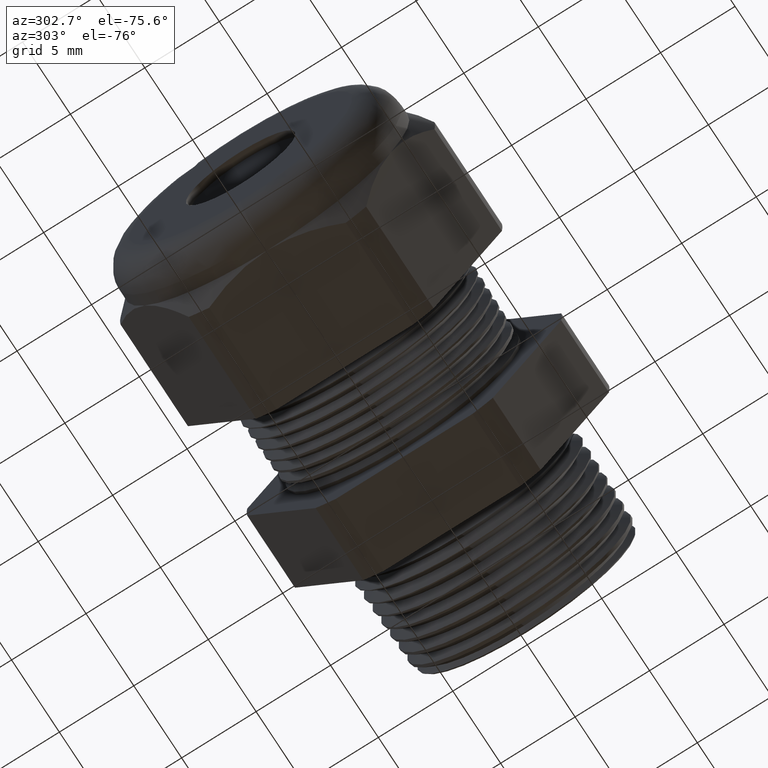
[diagram: clean part render]
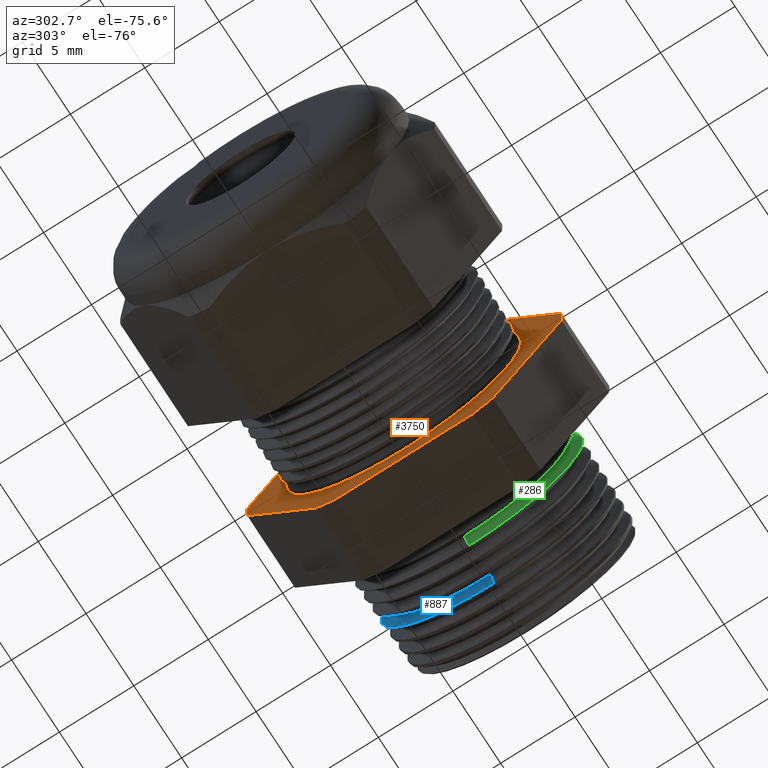
[diagram: same view with three faces highlighted in distinct colors, each labeled with its STEP entity id]
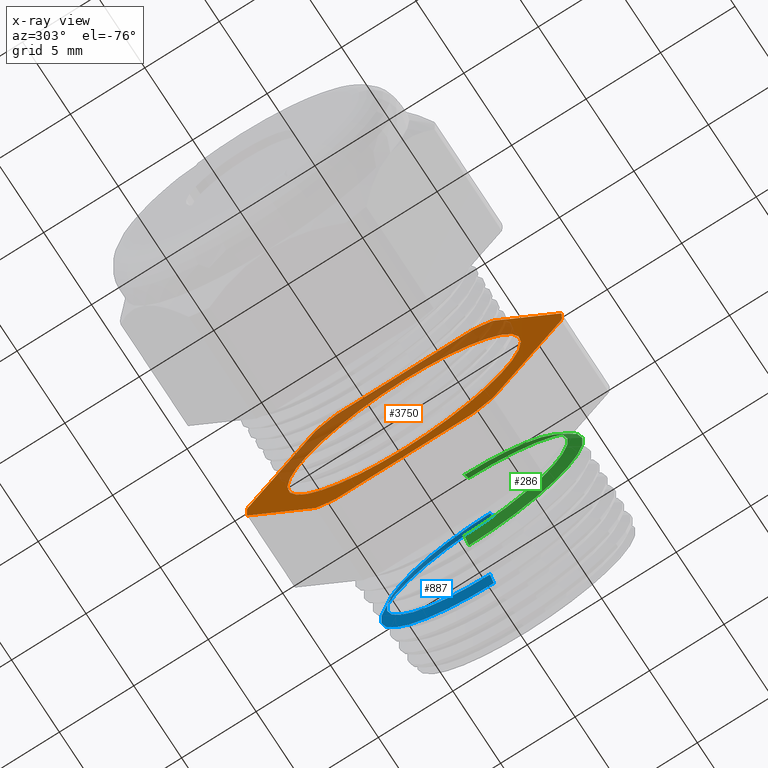
[diagram: x-ray of the same camera — body ghosted, the three highlighted faces saturated]
A machine part, auxiliary view with three faces highlighted in distinct colors.
The next image is the same camera in x-ray (body ghosted, the three faces saturated) — at least one of them is partly hidden behind the body in this view.
Their STEP definitions:

[orange] entity #3750 — the highlighted planar face has unit normal (-1, 0, 0).
#32 = EDGE_CURVE ( 'NONE', #3816, #35, #1133, .T. ) ;
#35 = VERTEX_POINT ( 'NONE', #1125 ) ;
#1052 = EDGE_CURVE ( 'NONE', #1061, #1053, #2877, .T. ) ;
#1053 = VERTEX_POINT ( 'NONE', #2934 ) ;
#1061 = VERTEX_POINT ( 'NONE', #2915 ) ;
#1125 = CARTESIAN_POINT ( 'NONE',  ( -0.5068503937007874400, 0.2344281053908202900, -0.3439586107409878800 ) ) ;
#1130 = DIRECTION ( 'NONE',  ( 0.0000000000000000000, -0.5000000000000001100, -0.8660254037844386000 ) ) ;
#1131 = VECTOR ( 'NONE', #1130, 39.37007874015748900 ) ;
#1132 = CARTESIAN_POINT ( 'NONE',  ( -0.5068503937007874400, 0.5122595264191646100, 0.1372595264191645000 ) ) ;
#1133 = LINE ( 'NONE', #1132, #1131 ) ;
#2877 = CIRCLE ( 'NONE', #2938, 0.3086102227604024500 ) ;
#2915 = CARTESIAN_POINT ( 'NONE',  ( -0.5068503937007873300, 3.780744073576440700E-017, -0.3086102227604024500 ) ) ;
#2934 = CARTESIAN_POINT ( 'NONE',  ( -0.5068503937007873300, 0.0000000000000000000, 0.3086102227604024500 ) ) ;
#2935 = DIRECTION ( 'NONE',  ( 0.0000000000000000000, 0.0000000000000000000, -1.000000000000000000 ) ) ;
#2936 = DIRECTION ( 'NONE',  ( 1.000000000000000000, 0.0000000000000000000, 0.0000000000000000000 ) ) ;
#2937 = CARTESIAN_POINT ( 'NONE',  ( -0.5068503937007873300, 0.0000000000000000000, 0.0000000000000000000 ) ) ;
#2938 = AXIS2_PLACEMENT_3D ( 'NONE', #2937, #2936, #2935 ) ;
#2948 = CARTESIAN_POINT ( 'NONE',  ( -0.5068503937007874400, 0.4150909474475088000, 0.03104138925901233200 ) ) ;
#2949 = DIRECTION ( 'NONE',  ( 0.0000000000000000000, 0.4999999999999998300, -0.8660254037844386000 ) ) ;
#2950 = VECTOR ( 'NONE', #2949, 39.37007874015748900 ) ;
#2951 = CARTESIAN_POINT ( 'NONE',  ( -0.5068503937007874400, 0.5122595264191646100, -0.1372595264191644500 ) ) ;
#2952 = LINE ( 'NONE', #2951, #2950 ) ;
#2972 = CARTESIAN_POINT ( 'NONE',  ( -0.5068503937007873300, 0.0000000000000000000, 0.0000000000000000000 ) ) ;
#2973 = CIRCLE ( 'NONE', #3035, 0.3086102227604024500 ) ;
#2974 = DIRECTION ( 'NONE',  ( 0.0000000000000000000, 0.0000000000000000000, 1.000000000000000000 ) ) ;
#2975 = DIRECTION ( 'NONE',  ( -1.000000000000000000, 0.0000000000000000000, 0.0000000000000000000 ) ) ;
#2976 = CARTESIAN_POINT ( 'NONE',  ( -0.5068503937007874400, 0.7500000000000001100, 0.0000000000000000000 ) ) ;
#2977 = AXIS2_PLACEMENT_3D ( 'NONE', #2976, #2975, #2974 ) ;
#2978 = FACE_OUTER_BOUND ( 'NONE', #3748, .T. ) ;
#2979 = FACE_BOUND ( 'NONE', #3749, .T. ) ;
#2984 = PLANE ( 'NONE',  #2977 ) ;
#2987 = DIRECTION ( 'NONE',  ( 0.0000000000000000000, 0.0000000000000000000, 1.000000000000000000 ) ) ;
#2988 = DIRECTION ( 'NONE',  ( -1.000000000000000000, 0.0000000000000000000, 0.0000000000000000000 ) ) ;
#2989 = CARTESIAN_POINT ( 'NONE',  ( -0.5068503937007874400, 0.0000000000000000000, 0.0000000000000000000 ) ) ;
#2990 = AXIS2_PLACEMENT_3D ( 'NONE', #2989, #2988, #2987 ) ;
#2991 = CIRCLE ( 'NONE', #2990, 0.4162500000000000100 ) ;
#3010 = CARTESIAN_POINT ( 'NONE',  ( -0.5068503937007874400, 0.2344281053908206000, 0.3439586107409877100 ) ) ;
#3011 = DIRECTION ( 'NONE',  ( 0.0000000000000000000, 0.0000000000000000000, 1.000000000000000000 ) ) ;
#3012 = DIRECTION ( 'NONE',  ( -1.000000000000000000, 0.0000000000000000000, 0.0000000000000000000 ) ) ;
#3013 = CARTESIAN_POINT ( 'NONE',  ( -0.5068503937007874400, 0.0000000000000000000, 0.0000000000000000000 ) ) ;
#3014 = AXIS2_PLACEMENT_3D ( 'NONE', #3013, #3012, #3011 ) ;
#3015 = CIRCLE ( 'NONE', #3014, 0.4162499999999999500 ) ;
#3033 = DIRECTION ( 'NONE',  ( 0.0000000000000000000, 0.0000000000000000000, -1.000000000000000000 ) ) ;
#3034 = DIRECTION ( 'NONE',  ( 1.000000000000000000, 0.0000000000000000000, 0.0000000000000000000 ) ) ;
#3035 = AXIS2_PLACEMENT_3D ( 'NONE', #2972, #3034, #3033 ) ;
#3054 = CARTESIAN_POINT ( 'NONE',  ( -0.5068503937007874400, 0.1806628420566887000, 0.3749999999999999400 ) ) ;
#3055 = DIRECTION ( 'NONE',  ( 0.0000000000000000000, 1.000000000000000000, 0.0000000000000000000 ) ) ;
#3056 = VECTOR ( 'NONE', #3055, 39.37007874015748100 ) ;
#3057 = CARTESIAN_POINT ( 'NONE',  ( -0.5068503937007874400, 0.7500000000000001100, 0.3749999999999999400 ) ) ;
#3062 = LINE ( 'NONE', #3057, #3056 ) ;
#3072 = DIRECTION ( 'NONE',  ( 0.0000000000000000000, 0.0000000000000000000, 1.000000000000000000 ) ) ;
#3073 = DIRECTION ( 'NONE',  ( -1.000000000000000000, 0.0000000000000000000, 0.0000000000000000000 ) ) ;
#3074 = CARTESIAN_POINT ( 'NONE',  ( -0.5068503937007874400, 0.0000000000000000000, 0.0000000000000000000 ) ) ;
#3075 = AXIS2_PLACEMENT_3D ( 'NONE', #3074, #3073, #3072 ) ;
#3076 = CIRCLE ( 'NONE', #3075, 0.4162500000000000100 ) ;
#3087 = CARTESIAN_POINT ( 'NONE',  ( -0.5068503937007874400, 0.4150909474475088000, -0.03104138925901223100 ) ) ;
#3088 = CARTESIAN_POINT ( 'NONE',  ( -0.5068503937007874400, -0.2344281053908202100, -0.3439586107409880500 ) ) ;
#3089 = DIRECTION ( 'NONE',  ( 0.0000000000000000000, 0.0000000000000000000, 1.000000000000000000 ) ) ;
#3090 = DIRECTION ( 'NONE',  ( -1.000000000000000000, 0.0000000000000000000, 0.0000000000000000000 ) ) ;
#3091 = CARTESIAN_POINT ( 'NONE',  ( -0.5068503937007874400, 0.0000000000000000000, 0.0000000000000000000 ) ) ;
#3092 = AXIS2_PLACEMENT_3D ( 'NONE', #3091, #3090, #3089 ) ;
#3093 = CIRCLE ( 'NONE', #3092, 0.4162500000000000100 ) ;
#3094 = DIRECTION ( 'NONE',  ( 0.0000000000000000000, 0.0000000000000000000, 1.000000000000000000 ) ) ;
#3095 = DIRECTION ( 'NONE',  ( -1.000000000000000000, 0.0000000000000000000, 0.0000000000000000000 ) ) ;
#3096 = CARTESIAN_POINT ( 'NONE',  ( -0.5068503937007874400, 0.0000000000000000000, 0.0000000000000000000 ) ) ;
#3097 = AXIS2_PLACEMENT_3D ( 'NONE', #3096, #3095, #3094 ) ;
#3098 = CIRCLE ( 'NONE', #3097, 0.4162500000000000100 ) ;
#3099 = CARTESIAN_POINT ( 'NONE',  ( -0.5068503937007874400, 0.1806628420566884800, -0.3750000000000001100 ) ) ;
#3107 = CARTESIAN_POINT ( 'NONE',  ( -0.5068503937007874400, -0.1806628420566886700, 0.3749999999999999400 ) ) ;
#3114 = CARTESIAN_POINT ( 'NONE',  ( -0.5068503937007874400, -0.4150909474475088000, 0.03104138925901241800 ) ) ;
#3119 = CARTESIAN_POINT ( 'NONE',  ( -0.5068503937007874400, -0.1806628420566883900, -0.3750000000000001100 ) ) ;
#3124 = DIRECTION ( 'NONE',  ( 0.0000000000000000000, -1.000000000000000000, 0.0000000000000000000 ) ) ;
#3125 = VECTOR ( 'NONE', #3124, 39.37007874015748100 ) ;
#3126 = CARTESIAN_POINT ( 'NONE',  ( -0.5068503937007874400, 0.7500000000000001100, -0.3750000000000001100 ) ) ;
#3132 = LINE ( 'NONE', #3126, #3125 ) ;
#3161 = DIRECTION ( 'NONE',  ( 0.0000000000000000000, 0.0000000000000000000, 1.000000000000000000 ) ) ;
#3162 = DIRECTION ( 'NONE',  ( -1.000000000000000000, 0.0000000000000000000, 0.0000000000000000000 ) ) ;
#3163 = CARTESIAN_POINT ( 'NONE',  ( -0.5068503937007874400, 0.0000000000000000000, 0.0000000000000000000 ) ) ;
#3164 = AXIS2_PLACEMENT_3D ( 'NONE', #3163, #3162, #3161 ) ;
#3165 = CIRCLE ( 'NONE', #3164, 0.4162500000000000100 ) ;
#3544 = CARTESIAN_POINT ( 'NONE',  ( -0.5068503937007874400, -0.2344281053908205100, 0.3439586107409878200 ) ) ;
#3545 = DIRECTION ( 'NONE',  ( 0.0000000000000000000, 0.4999999999999998300, 0.8660254037844386000 ) ) ;
#3546 = VECTOR ( 'NONE', #3545, 39.37007874015748900 ) ;
#3547 = CARTESIAN_POINT ( 'NONE',  ( -0.5068503937007874400, -0.1372595264191648300, 0.5122595264191645000 ) ) ;
#3548 = LINE ( 'NONE', #3547, #3546 ) ;
#3615 = CARTESIAN_POINT ( 'NONE',  ( -0.5068503937007874400, -0.4150909474475088000, -0.03104138925901237000 ) ) ;
#3616 = DIRECTION ( 'NONE',  ( 0.0000000000000000000, -0.5000000000000002200, 0.8660254037844384900 ) ) ;
#3617 = VECTOR ( 'NONE', #3616, 39.37007874015748900 ) ;
#3618 = CARTESIAN_POINT ( 'NONE',  ( -0.5068503937007874400, -0.1372595264191642800, -0.5122595264191648300 ) ) ;
#3619 = LINE ( 'NONE', #3618, #3617 ) ;
#3714 = EDGE_CURVE ( 'NONE', #3784, #3715, #2952, .T. ) ;
#3715 = VERTEX_POINT ( 'NONE', #2948 ) ;
#3732 = EDGE_CURVE ( 'NONE', #3715, #3816, #2991, .T. ) ;
#3745 = ORIENTED_EDGE ( 'NONE', *, *, #3753, .T. ) ;
#3746 = ORIENTED_EDGE ( 'NONE', *, *, #1052, .T. ) ;
#3747 = ORIENTED_EDGE ( 'NONE', *, *, #3714, .T. ) ;
#3748 = EDGE_LOOP ( 'NONE', ( #3747, #3761, #3765, #3764, #3762, #3760, #3758, #3759, #3757, #3756, #3834, #3777 ) ) ;
#3749 = EDGE_LOOP ( 'NONE', ( #3745, #3746 ) ) ;
#3750 = ADVANCED_FACE ( 'NONE', ( #2979, #2978 ), #2984, .T. ) ;
#3753 = EDGE_CURVE ( 'NONE', #1053, #1061, #2973, .T. ) ;
#3756 = ORIENTED_EDGE ( 'NONE', *, *, #3850, .T. ) ;
#3757 = ORIENTED_EDGE ( 'NONE', *, *, #4052, .T. ) ;
#3758 = ORIENTED_EDGE ( 'NONE', *, *, #4079, .T. ) ;
#3759 = ORIENTED_EDGE ( 'NONE', *, *, #3821, .T. ) ;
#3760 = ORIENTED_EDGE ( 'NONE', *, *, #3813, .T. ) ;
#3761 = ORIENTED_EDGE ( 'NONE', *, *, #3732, .T. ) ;
#3762 = ORIENTED_EDGE ( 'NONE', *, *, #3828, .T. ) ;
#3764 = ORIENTED_EDGE ( 'NONE', *, *, #3810, .T. ) ;
#3765 = ORIENTED_EDGE ( 'NONE', *, *, #32, .T. ) ;
#3777 = ORIENTED_EDGE ( 'NONE', *, *, #3781, .T. ) ;
#3781 = EDGE_CURVE ( 'NONE', #3797, #3784, #3015, .T. ) ;
#3784 = VERTEX_POINT ( 'NONE', #3010 ) ;
#3795 = EDGE_CURVE ( 'NONE', #3847, #3797, #3062, .T. ) ;
#3797 = VERTEX_POINT ( 'NONE', #3054 ) ;
#3808 = VERTEX_POINT ( 'NONE', #3099 ) ;
#3810 = EDGE_CURVE ( 'NONE', #35, #3808, #3098, .T. ) ;
#3813 = EDGE_CURVE ( 'NONE', #3832, #3815, #3093, .T. ) ;
#3815 = VERTEX_POINT ( 'NONE', #3088 ) ;
#3816 = VERTEX_POINT ( 'NONE', #3087 ) ;
#3821 = EDGE_CURVE ( 'NONE', #4081, #3839, #3076, .T. ) ;
#3828 = EDGE_CURVE ( 'NONE', #3808, #3832, #3132, .T. ) ;
#3832 = VERTEX_POINT ( 'NONE', #3119 ) ;
#3834 = ORIENTED_EDGE ( 'NONE', *, *, #3795, .T. ) ;
#3839 = VERTEX_POINT ( 'NONE', #3114 ) ;
#3847 = VERTEX_POINT ( 'NONE', #3107 ) ;
#3850 = EDGE_CURVE ( 'NONE', #4053, #3847, #3165, .T. ) ;
#4052 = EDGE_CURVE ( 'NONE', #3839, #4053, #3548, .T. ) ;
#4053 = VERTEX_POINT ( 'NONE', #3544 ) ;
#4079 = EDGE_CURVE ( 'NONE', #3815, #4081, #3619, .T. ) ;
#4081 = VERTEX_POINT ( 'NONE', #3615 ) ;

[blue] entity #887 — the highlighted conical surface has half-angle 58.5 deg.
#711 = VERTEX_POINT ( 'NONE', #2266 ) ;
#718 = VERTEX_POINT ( 'NONE', #2252 ) ;
#719 = EDGE_CURVE ( 'NONE', #882, #718, #2251, .T. ) ;
#724 = ORIENTED_EDGE ( 'NONE', *, *, #727, .T. ) ;
#726 = ORIENTED_EDGE ( 'NONE', *, *, #789, .T. ) ;
#727 = EDGE_CURVE ( 'NONE', #883, #711, #2299, .T. ) ;
#788 = ORIENTED_EDGE ( 'NONE', *, *, #719, .F. ) ;
#789 = EDGE_CURVE ( 'NONE', #711, #718, #2432, .T. ) ;
#880 = ORIENTED_EDGE ( 'NONE', *, *, #881, .T. ) ;
#881 = EDGE_CURVE ( 'NONE', #882, #883, #2564, .T. ) ;
#882 = VERTEX_POINT ( 'NONE', #2623 ) ;
#883 = VERTEX_POINT ( 'NONE', #2622 ) ;
#887 = ADVANCED_FACE ( 'NONE', ( #2612 ), #2611, .T. ) ;
#956 = EDGE_LOOP ( 'NONE', ( #880, #724, #726, #788 ) ) ;
#2248 = DIRECTION ( 'NONE',  ( 0.5224985647159332600, 0.0000000000000000000, -0.8526401643541019500 ) ) ;
#2249 = VECTOR ( 'NONE', #2248, 39.37007874015747400 ) ;
#2250 = CARTESIAN_POINT ( 'NONE',  ( -0.1534707356790751800, 0.0000000000000000000, -0.2730123959962614800 ) ) ;
#2251 = LINE ( 'NONE', #2250, #2249 ) ;
#2252 = CARTESIAN_POINT ( 'NONE',  ( -0.1375819195166189400, 3.660966335649895900E-017, -0.2989405874574451200 ) ) ;
#2266 = CARTESIAN_POINT ( 'NONE',  ( -0.1375819195166189400, 0.0000000000000000000, 0.2989405874574451200 ) ) ;
#2296 = DIRECTION ( 'NONE',  ( 0.5224985647159332600, 1.044183048100724200E-016, 0.8526401643541019500 ) ) ;
#2297 = VECTOR ( 'NONE', #2296, 39.37007874015747400 ) ;
#2298 = CARTESIAN_POINT ( 'NONE',  ( -0.1534707356790751800, 3.343437568843712800E-017, 0.2730123959962614800 ) ) ;
#2299 = LINE ( 'NONE', #2298, #2297 ) ;
#2428 = DIRECTION ( 'NONE',  ( 0.0000000000000000000, 0.0000000000000000000, -1.000000000000000000 ) ) ;
#2429 = DIRECTION ( 'NONE',  ( -1.000000000000000000, 0.0000000000000000000, 0.0000000000000000000 ) ) ;
#2430 = CARTESIAN_POINT ( 'NONE',  ( -0.1375819195166189400, 0.0000000000000000000, 0.0000000000000000000 ) ) ;
#2431 = AXIS2_PLACEMENT_3D ( 'NONE', #2430, #2429, #2428 ) ;
#2432 = CIRCLE ( 'NONE', #2431, 0.2989405874574451200 ) ;
#2561 = DIRECTION ( 'NONE',  ( 1.000000000000000000, 0.0000000000000000000, 0.0000000000000000000 ) ) ;
#2562 = CARTESIAN_POINT ( 'NONE',  ( -0.1534707356790751800, 0.0000000000000000000, 0.0000000000000000000 ) ) ;
#2563 = AXIS2_PLACEMENT_3D ( 'NONE', #2562, #2561, #2624 ) ;
#2564 = CIRCLE ( 'NONE', #2563, 0.2730123959962614800 ) ;
#2607 = DIRECTION ( 'NONE',  ( 0.0000000000000000000, 0.0000000000000000000, -1.000000000000000000 ) ) ;
#2608 = DIRECTION ( 'NONE',  ( 1.000000000000000000, 0.0000000000000000000, 0.0000000000000000000 ) ) ;
#2609 = CARTESIAN_POINT ( 'NONE',  ( -0.1534707356790751800, 0.0000000000000000000, 0.0000000000000000000 ) ) ;
#2610 = AXIS2_PLACEMENT_3D ( 'NONE', #2609, #2608, #2607 ) ;
#2611 = CONICAL_SURFACE ( 'NONE', #2610, 0.2730123959962614800, 1.021017612416701200 ) ;
#2612 = FACE_OUTER_BOUND ( 'NONE', #956, .T. ) ;
#2622 = CARTESIAN_POINT ( 'NONE',  ( -0.1534707356790751800, 0.0000000000000000000, 0.2730123959962614800 ) ) ;
#2623 = CARTESIAN_POINT ( 'NONE',  ( -0.1534707356790751800, 3.507076185518024000E-017, -0.2730123959962614800 ) ) ;
#2624 = DIRECTION ( 'NONE',  ( 0.0000000000000000000, 0.0000000000000000000, -1.000000000000000000 ) ) ;

[green] entity #286 — the highlighted conical surface has half-angle 58.5 deg.
#286 = ADVANCED_FACE ( 'NONE', ( #1573 ), #1572, .T. ) ;
#287 = EDGE_LOOP ( 'NONE', ( #288, #289, #290, #291 ) ) ;
#288 = ORIENTED_EDGE ( 'NONE', *, *, #856, .F. ) ;
#289 = ORIENTED_EDGE ( 'NONE', *, *, #358, .T. ) ;
#290 = ORIENTED_EDGE ( 'NONE', *, *, #860, .T. ) ;
#291 = ORIENTED_EDGE ( 'NONE', *, *, #4066, .T. ) ;
#358 = EDGE_CURVE ( 'NONE', #826, #823, #1621, .T. ) ;
#821 = VERTEX_POINT ( 'NONE', #2487 ) ;
#823 = VERTEX_POINT ( 'NONE', #2486 ) ;
#826 = VERTEX_POINT ( 'NONE', #2480 ) ;
#856 = EDGE_CURVE ( 'NONE', #826, #821, #2551, .T. ) ;
#860 = EDGE_CURVE ( 'NONE', #823, #863, #2540, .T. ) ;
#863 = VERTEX_POINT ( 'NONE', #2535 ) ;
#1567 = DIRECTION ( 'NONE',  ( 0.0000000000000000000, 0.0000000000000000000, -1.000000000000000000 ) ) ;
#1568 = DIRECTION ( 'NONE',  ( 1.000000000000000000, 0.0000000000000000000, 0.0000000000000000000 ) ) ;
#1569 = CARTESIAN_POINT ( 'NONE',  ( -0.2584707356790751900, 0.0000000000000000000, 0.0000000000000000000 ) ) ;
#1570 = AXIS2_PLACEMENT_3D ( 'NONE', #1569, #1568, #1567 ) ;
#1572 = CONICAL_SURFACE ( 'NONE', #1570, 0.2730123959962614800, 1.021017612416701200 ) ;
#1573 = FACE_OUTER_BOUND ( 'NONE', #287, .T. ) ;
#1612 = DIRECTION ( 'NONE',  ( 0.0000000000000000000, 0.0000000000000000000, -1.000000000000000000 ) ) ;
#1613 = DIRECTION ( 'NONE',  ( 1.000000000000000000, 0.0000000000000000000, 0.0000000000000000000 ) ) ;
#1614 = CARTESIAN_POINT ( 'NONE',  ( -0.2584707356790751900, 0.0000000000000000000, 0.0000000000000000000 ) ) ;
#1615 = AXIS2_PLACEMENT_3D ( 'NONE', #1614, #1613, #1612 ) ;
#1621 = CIRCLE ( 'NONE', #1615, 0.2730123959962614800 ) ;
#2480 = CARTESIAN_POINT ( 'NONE',  ( -0.2584707356790751900, 0.0000000000000000000, 0.2730123959962614800 ) ) ;
#2486 = CARTESIAN_POINT ( 'NONE',  ( -0.2584707356790751900, 3.483004186774505800E-017, -0.2730123959962614800 ) ) ;
#2487 = CARTESIAN_POINT ( 'NONE',  ( -0.2409236207239159000, 0.0000000000000000000, 0.3016466851400850200 ) ) ;
#2535 = CARTESIAN_POINT ( 'NONE',  ( -0.2409236207239159000, 3.694106474302146200E-017, -0.3016466851400850200 ) ) ;
#2537 = DIRECTION ( 'NONE',  ( 0.5224985647159332600, 0.0000000000000000000, -0.8526401643541019500 ) ) ;
#2538 = VECTOR ( 'NONE', #2537, 39.37007874015747400 ) ;
#2539 = CARTESIAN_POINT ( 'NONE',  ( -0.2584707356790751900, 0.0000000000000000000, -0.2730123959962614800 ) ) ;
#2540 = LINE ( 'NONE', #2539, #2538 ) ;
#2548 = DIRECTION ( 'NONE',  ( 0.5224985647159332600, 1.044183048100724200E-016, 0.8526401643541019500 ) ) ;
#2549 = VECTOR ( 'NONE', #2548, 39.37007874015747400 ) ;
#2550 = CARTESIAN_POINT ( 'NONE',  ( -0.2584707356790751900, 3.343437568843712800E-017, 0.2730123959962614800 ) ) ;
#2551 = LINE ( 'NONE', #2550, #2549 ) ;
#3575 = DIRECTION ( 'NONE',  ( 0.0000000000000000000, 0.0000000000000000000, -1.000000000000000000 ) ) ;
#3576 = DIRECTION ( 'NONE',  ( -1.000000000000000000, 0.0000000000000000000, 0.0000000000000000000 ) ) ;
#3577 = CARTESIAN_POINT ( 'NONE',  ( -0.2409236207239159000, 0.0000000000000000000, 0.0000000000000000000 ) ) ;
#3578 = AXIS2_PLACEMENT_3D ( 'NONE', #3577, #3576, #3575 ) ;
#3579 = CIRCLE ( 'NONE', #3578, 0.3016466851400849700 ) ;
#4066 = EDGE_CURVE ( 'NONE', #863, #821, #3579, .T. ) ;